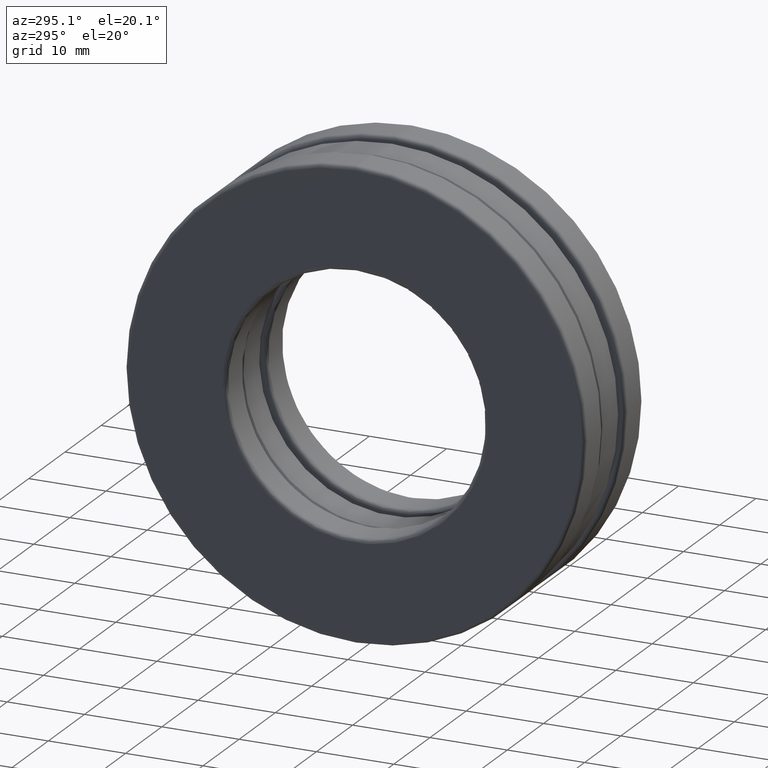
[diagram: clean part render]
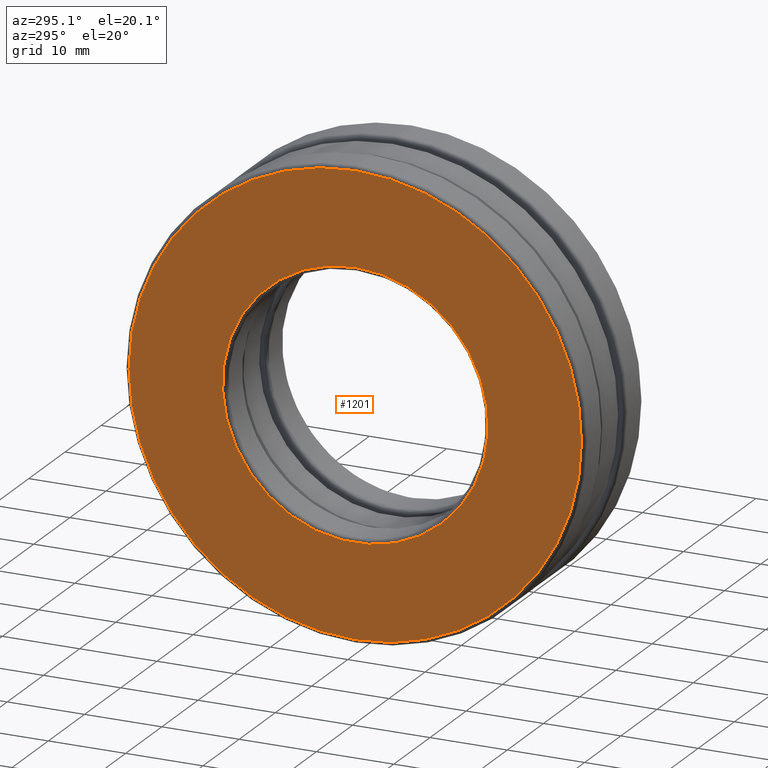
[diagram: same view with one face highlighted and labeled with its STEP entity id]
A machine part, auxiliary view. The second image highlights one B-rep face of the part: STEP entity #1201.
In plain terms, the highlighted planar face has unit normal (1, 0, 0).
Its self-contained STEP definition (entity closure, byte-faithful):
#12 = EDGE_LOOP ( 'NONE', ( #380 ) ) ;
#43 = ORIENTED_EDGE ( 'NONE', *, *, #1010, .T. ) ;
#98 = CARTESIAN_POINT ( 'NONE',  ( -0.3125000000000000000, 0.0000000000000000000, 1.151875000000000200 ) ) ;
#125 = DIRECTION ( 'NONE',  ( -1.000000000000000000, -0.0000000000000000000, -0.0000000000000000000 ) ) ;
#348 = FACE_BOUND ( 'NONE', #12, .T. ) ;
#378 = EDGE_LOOP ( 'NONE', ( #43 ) ) ;
#380 = ORIENTED_EDGE ( 'NONE', *, *, #1418, .F. ) ;
#381 = PLANE ( 'NONE',  #605 ) ;
#475 = AXIS2_PLACEMENT_3D ( 'NONE', #1031, #125, #574 ) ;
#486 = DIRECTION ( 'NONE',  ( 1.000000000000000000, 0.0000000000000000000, 0.0000000000000000000 ) ) ;
#509 = CIRCLE ( 'NONE', #936, 0.6762500000000000200 ) ;
#557 = CARTESIAN_POINT ( 'NONE',  ( -0.3124999999999999400, 0.0000000000000000000, 0.6762500000000000200 ) ) ;
#574 = DIRECTION ( 'NONE',  ( 0.0000000000000000000, 0.0000000000000000000, 1.000000000000000000 ) ) ;
#605 = AXIS2_PLACEMENT_3D ( 'NONE', #1164, #486, #1275 ) ;
#886 = DIRECTION ( 'NONE',  ( 0.0000000000000000000, 0.0000000000000000000, 1.000000000000000000 ) ) ;
#936 = AXIS2_PLACEMENT_3D ( 'NONE', #1429, #1107, #886 ) ;
#996 = CIRCLE ( 'NONE', #475, 1.151875000000000200 ) ;
#999 = VERTEX_POINT ( 'NONE', #557 ) ;
#1010 = EDGE_CURVE ( 'NONE', #1397, #1397, #996, .T. ) ;
#1031 = CARTESIAN_POINT ( 'NONE',  ( -0.3125000000000000000, 0.0000000000000000000, 0.0000000000000000000 ) ) ;
#1107 = DIRECTION ( 'NONE',  ( -1.000000000000000000, -0.0000000000000000000, -0.0000000000000000000 ) ) ;
#1164 = CARTESIAN_POINT ( 'NONE',  ( -0.3125000000000000000, -4.487266743863767500E-017, 0.0000000000000000000 ) ) ;
#1201 = ADVANCED_FACE ( 'NONE', ( #348, #1456 ), #381, .F. ) ;
#1275 = DIRECTION ( 'NONE',  ( 0.0000000000000000000, 0.0000000000000000000, -1.000000000000000000 ) ) ;
#1397 = VERTEX_POINT ( 'NONE', #98 ) ;
#1418 = EDGE_CURVE ( 'NONE', #999, #999, #509, .T. ) ;
#1429 = CARTESIAN_POINT ( 'NONE',  ( -0.3124999999999999400, 0.0000000000000000000, 0.0000000000000000000 ) ) ;
#1456 = FACE_OUTER_BOUND ( 'NONE', #378, .T. ) ;